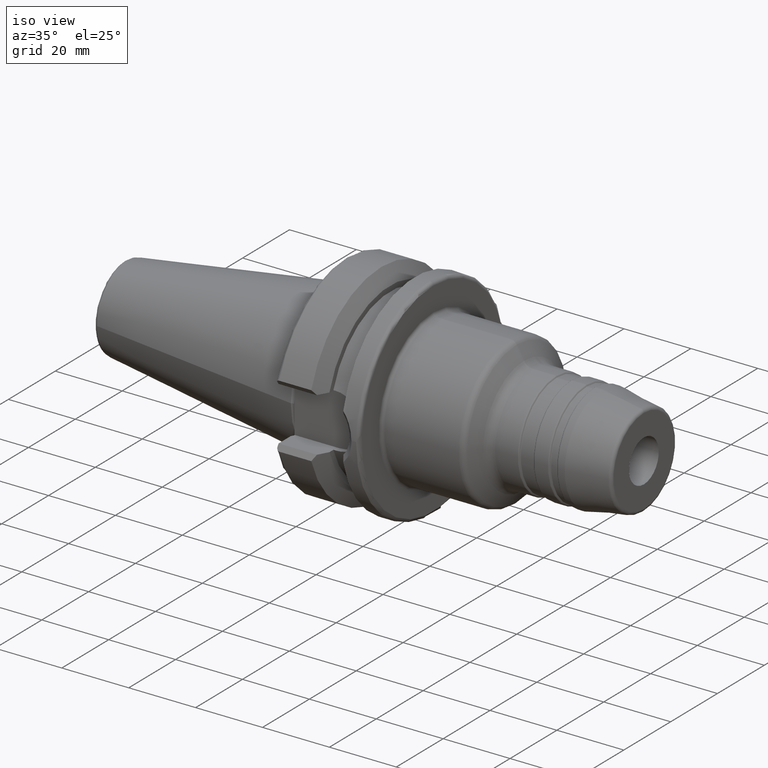
[diagram: clean part render]
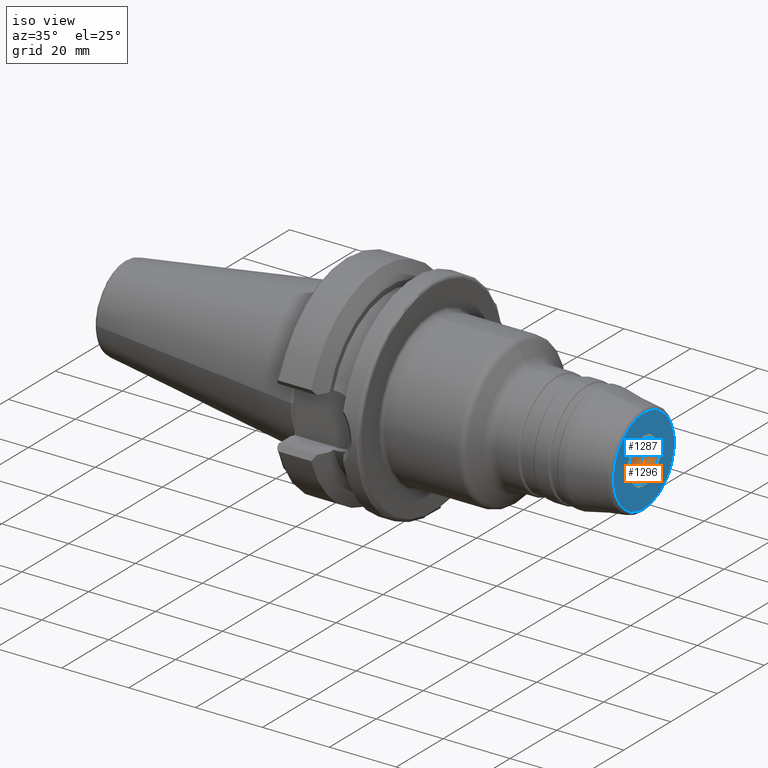
[diagram: same view with the hole feature highlighted: cylindrical wall and planar end face, labeled with their STEP entity ids]
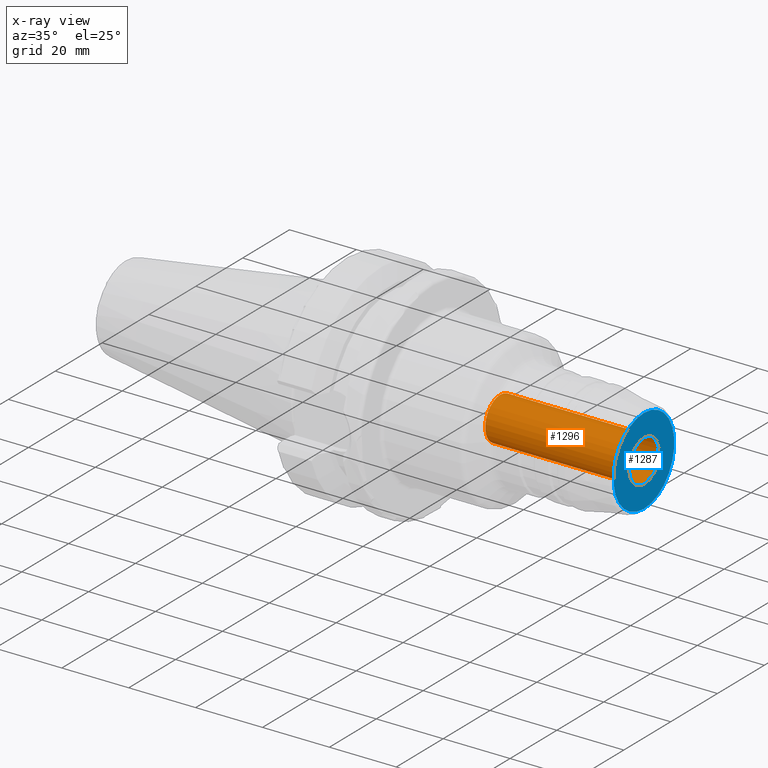
[diagram: x-ray of the same camera — body ghosted, the hole faces saturated]
A machine part, iso view. The highlighted faces form one hole feature of diameter 12.7 mm: the cylindrical wall (entity #1296, orange) and its adjacent planar end face (entity #1287, blue) — they share a circular edge in the B-rep.
The next image is the same camera in x-ray (body ghosted, the hole faces saturated) — the bore reads through the body.
Wall:
#148=FACE_OUTER_BOUND('',#234,.T.);
#234=EDGE_LOOP('',(#971,#972,#973,#974));
#304=LINE('',#2109,#374);
#374=VECTOR('',#1729,6.35);
#464=CIRCLE('',#1430,6.35);
#477=CIRCLE('',#1452,6.34999999999999);
#550=VERTEX_POINT('',#2073);
#560=VERTEX_POINT('',#2108);
#695=EDGE_CURVE('',#550,#550,#464,.T.);
#711=EDGE_CURVE('',#550,#560,#304,.T.);
#712=EDGE_CURVE('',#560,#560,#477,.T.);
#971=ORIENTED_EDGE('',*,*,#695,.T.);
#972=ORIENTED_EDGE('',*,*,#711,.T.);
#973=ORIENTED_EDGE('',*,*,#712,.F.);
#974=ORIENTED_EDGE('',*,*,#711,.F.);
#1252=CYLINDRICAL_SURFACE('',#1451,6.35);
#1296=ADVANCED_FACE('',(#148),#1252,.F.);
#1430=AXIS2_PLACEMENT_3D('',#2074,#1682,#1683);
#1451=AXIS2_PLACEMENT_3D('',#2107,#1727,#1728);
#1452=AXIS2_PLACEMENT_3D('',#2110,#1730,#1731);
#1682=DIRECTION('center_axis',(1.,0.,0.));
#1683=DIRECTION('ref_axis',(0.,0.,-1.));
#1727=DIRECTION('center_axis',(1.,0.,0.));
#1728=DIRECTION('ref_axis',(0.,0.,-1.));
#1729=DIRECTION('',(-1.,0.,0.));
#1730=DIRECTION('center_axis',(1.,0.,0.));
#1731=DIRECTION('ref_axis',(0.,0.,-1.));
#2073=CARTESIAN_POINT('',(90.,-7.77650717458569E-16,6.35));
#2074=CARTESIAN_POINT('Origin',(90.,0.,0.));
#2107=CARTESIAN_POINT('Origin',(68.5,0.,0.));
#2108=CARTESIAN_POINT('',(47.,-7.77650717458569E-16,6.35));
#2109=CARTESIAN_POINT('',(68.5,-7.77650717458569E-16,6.35));
#2110=CARTESIAN_POINT('Origin',(47.,0.,0.));
End face:
#50=FACE_BOUND('',#223,.T.);
#56=PLANE('',#1429);
#139=FACE_OUTER_BOUND('',#222,.T.);
#222=EDGE_LOOP('',(#939));
#223=EDGE_LOOP('',(#940));
#462=CIRCLE('',#1427,12.9609003688227);
#464=CIRCLE('',#1430,6.35);
#549=VERTEX_POINT('',#2069);
#550=VERTEX_POINT('',#2073);
#693=EDGE_CURVE('',#549,#549,#462,.T.);
#695=EDGE_CURVE('',#550,#550,#464,.T.);
#939=ORIENTED_EDGE('',*,*,#693,.F.);
#940=ORIENTED_EDGE('',*,*,#695,.F.);
#1287=ADVANCED_FACE('',(#139,#50),#56,.T.);
#1427=AXIS2_PLACEMENT_3D('',#2070,#1676,#1677);
#1429=AXIS2_PLACEMENT_3D('',#2072,#1680,#1681);
#1430=AXIS2_PLACEMENT_3D('',#2074,#1682,#1683);
#1676=DIRECTION('center_axis',(-1.,0.,0.));
#1677=DIRECTION('ref_axis',(0.,1.22464679914735E-16,1.));
#1680=DIRECTION('center_axis',(1.,0.,0.));
#1681=DIRECTION('ref_axis',(0.,0.,-1.));
#1682=DIRECTION('center_axis',(1.,0.,0.));
#1683=DIRECTION('ref_axis',(0.,0.,-1.));
#2069=CARTESIAN_POINT('',(90.,-1.58725251507465E-15,12.9609003688227));
#2070=CARTESIAN_POINT('Origin',(90.,0.,0.));
#2072=CARTESIAN_POINT('Origin',(90.,0.,-6.35));
#2073=CARTESIAN_POINT('',(90.,-7.77650717458569E-16,6.35));
#2074=CARTESIAN_POINT('Origin',(90.,0.,0.));